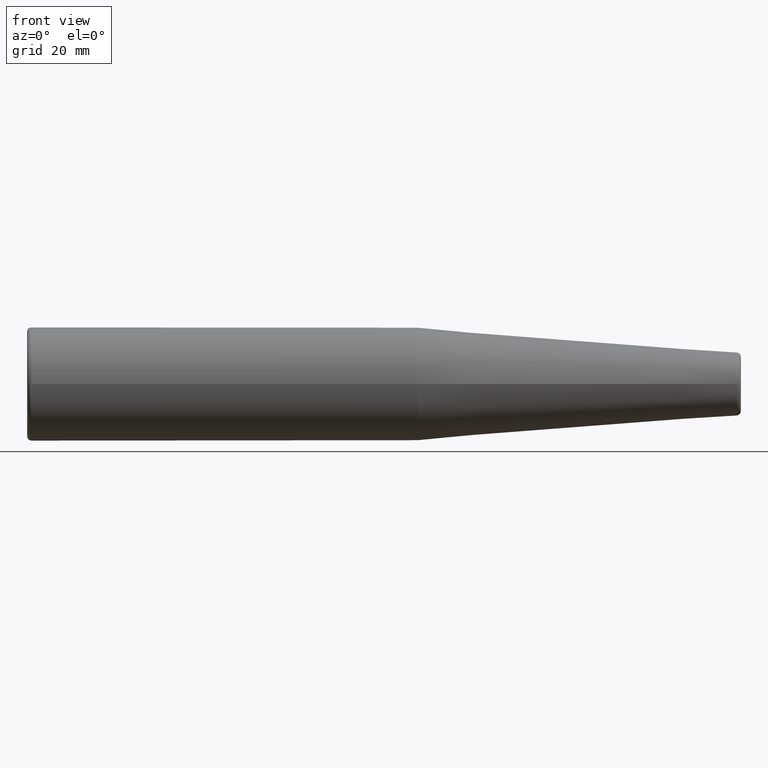
[diagram: clean part render]
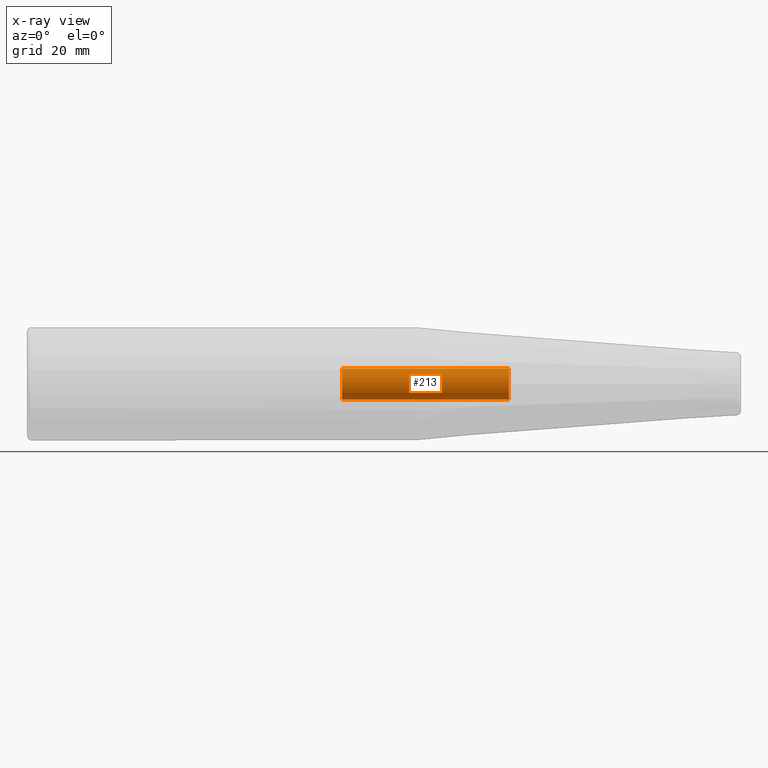
[diagram: x-ray — body ghosted, one internal face saturated and labeled with its STEP entity id]
A machine part, front view, then the same camera in x-ray: the body is ghosted and one INTERNAL B-rep face — a face not visible from any outside direction — is saturated and labeled: STEP entity #213.
In plain terms, the highlighted cylindrical surface (bore or boss wall) has radius 3.5 mm, axis along (-1, 0, 0).
Its self-contained STEP definition (entity closure, byte-faithful):
#30=FACE_OUTER_BOUND('',#45,.T.);
#45=EDGE_LOOP('',(#157,#158,#159,#160));
#64=LINE('',#381,#73);
#73=VECTOR('',#304,3.5);
#83=CIRCLE('',#254,3.5);
#84=CIRCLE('',#256,3.5);
#103=VERTEX_POINT('',#375);
#104=VERTEX_POINT('',#379);
#122=EDGE_CURVE('',#103,#103,#83,.T.);
#124=EDGE_CURVE('',#104,#104,#84,.T.);
#125=EDGE_CURVE('',#104,#103,#64,.T.);
#157=ORIENTED_EDGE('',*,*,#124,.F.);
#158=ORIENTED_EDGE('',*,*,#125,.T.);
#159=ORIENTED_EDGE('',*,*,#122,.F.);
#160=ORIENTED_EDGE('',*,*,#125,.F.);
#206=CYLINDRICAL_SURFACE('',#255,3.5);
#213=ADVANCED_FACE('',(#30),#206,.F.);
#254=AXIS2_PLACEMENT_3D('',#376,#297,#298);
#255=AXIS2_PLACEMENT_3D('',#378,#300,#301);
#256=AXIS2_PLACEMENT_3D('',#380,#302,#303);
#297=DIRECTION('center_axis',(-1.,0.,0.));
#298=DIRECTION('ref_axis',(0.,0.,1.));
#300=DIRECTION('center_axis',(-1.,0.,0.));
#301=DIRECTION('ref_axis',(0.,0.,1.));
#302=DIRECTION('center_axis',(1.,0.,0.));
#303=DIRECTION('ref_axis',(0.,0.,1.));
#304=DIRECTION('',(1.,0.,0.));
#375=CARTESIAN_POINT('',(-52.,-4.28626379701574E-16,-3.5));
#376=CARTESIAN_POINT('Origin',(-52.,0.,0.));
#378=CARTESIAN_POINT('Origin',(-106.,0.,0.));
#379=CARTESIAN_POINT('',(-89.3991393809724,4.28626379701574E-16,-3.5));
#380=CARTESIAN_POINT('Origin',(-89.3991393809724,0.,0.));
#381=CARTESIAN_POINT('',(-106.,-4.28626379701574E-16,-3.5));